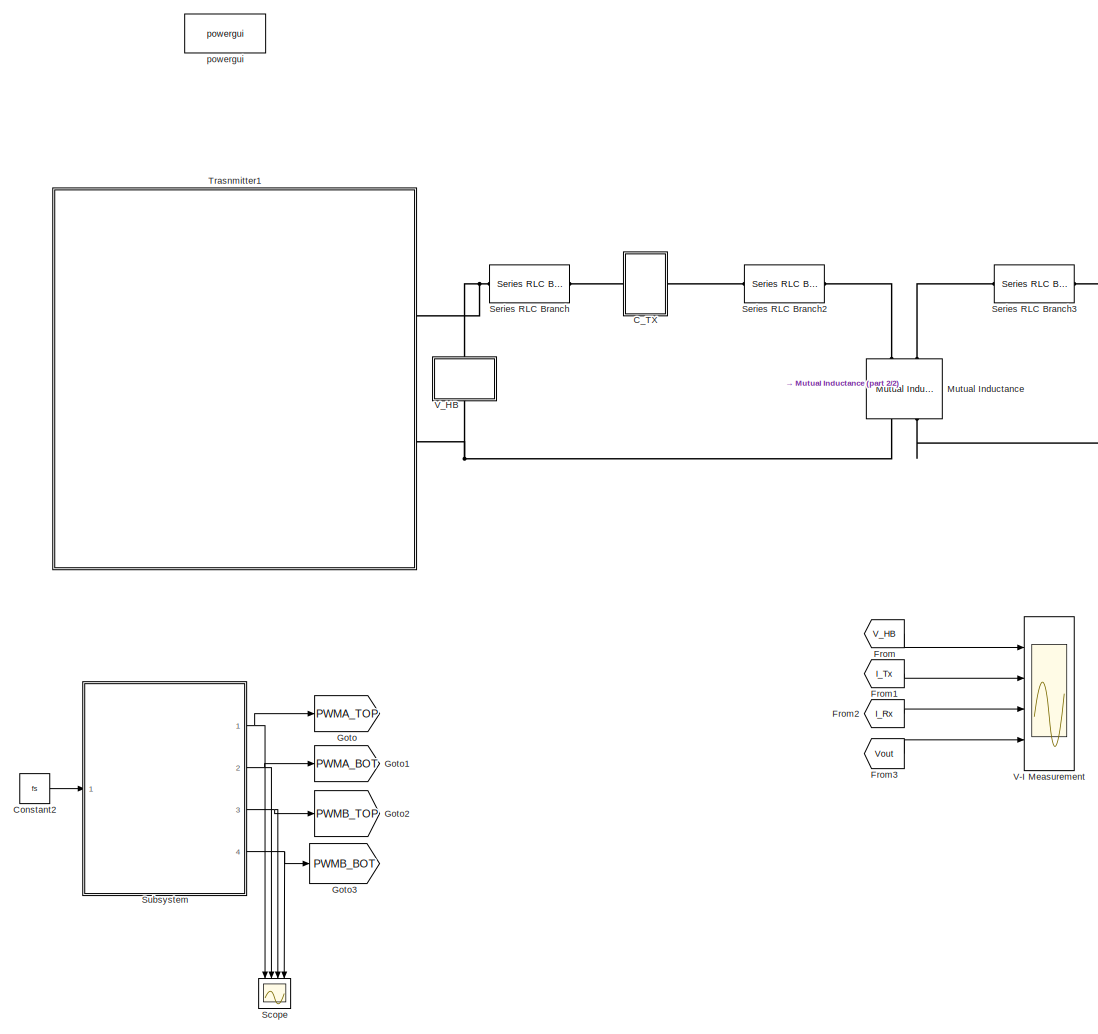
[diagram: root canvas - part 1/2, left side, full height]
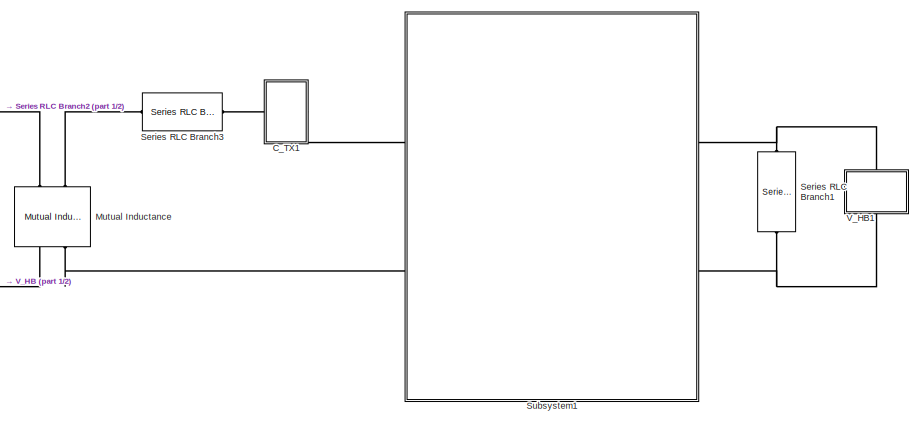
[diagram: root canvas - part 2/2, middle right region]
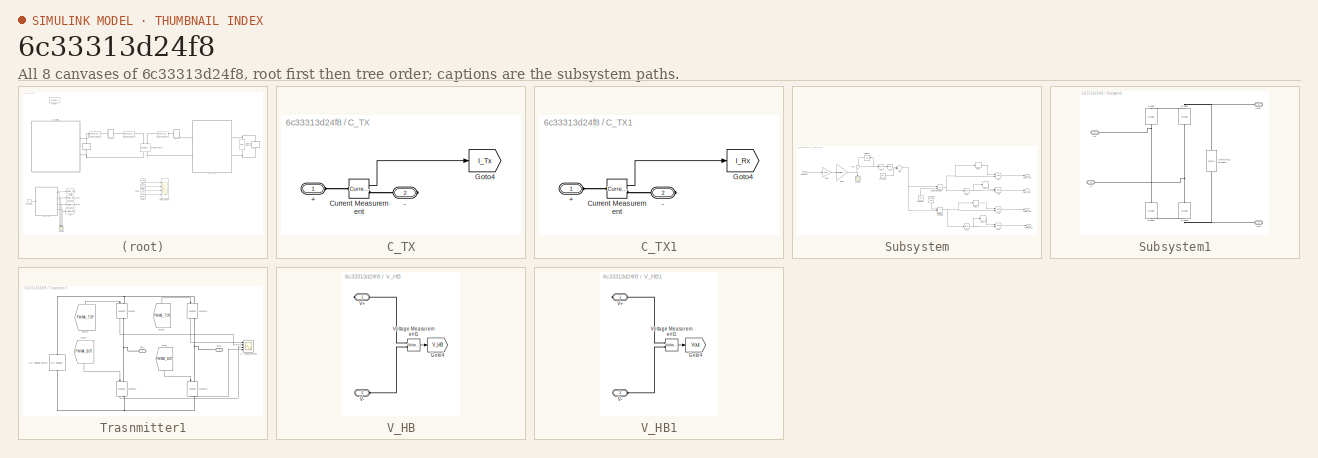
[diagram: thumbnail index - all 8 canvases of the model, root first then tree order]
MODEL slx_6c33313d24f8
KIND model
CONFIG AbsTol = auto
CONFIG EnableMultiTasking = off
CONFIG FixedStep = sampleTime
CONFIG InitFcn = fs=160e3; %Hz\nstopTime=0.01;\nsampleTime=1e-8;\ndeadtime= round(((1/fs)/20)/sampleTime);\nVdc=100;\nLp=82e-6; \nCp=1/ (Lp*4*pi*pi*150e3*150e3);\nLs=66e-6;\nCs=1/ (Ls*4*pi*pi*150e3*150e3);\nRp=0.3;\nRs=0.2;\nRLOAD=20\nk=0.2;\nM=sqrt(Lp*Ls)*k;\nCout=1e-6; %F
CONFIG MaxStep = auto
CONFIG MinStep = auto
CONFIG RelTol = 1e-3
CONFIG SampleTimeConstraint = Unconstrained
CONFIG Solver = FixedStepDiscrete
CONFIG SolverName = FixedStepDiscrete
CONFIG StartTime = 0.0
CONFIG StopTime = stopTime
BLOCK [SubSystem] C_TX
  Ports = [0, 0, 0, 0, 0, 1, 1]
  RequestExecContextInheritance = off
BLOCK [PMIOPort] C_TX/+
  Side = Left
BLOCK [PMIOPort] C_TX/-
  Port = 2
  Side = Right
BLOCK [Reference] C_TX/Current Measurement  REF=powerlib/Measurements/Current Measurement
  Ports = [0, 1, 0, 0, 0, 1, 1]
  SourceBlock = powerlib/Measurements/Current Measurement
  SourceProductBaseCode = PS
  SourceProductName = Simscape Power Systems
  SourceType = Current Measurement
  UserDataPersistent = on
BLOCK [Goto] C_TX/Goto4
  GotoTag = I_Tx
  TagVisibility = global
BLOCK [SubSystem] C_TX1
  Ports = [0, 0, 0, 0, 0, 1, 1]
  RequestExecContextInheritance = off
BLOCK [PMIOPort] C_TX1/+
  Side = Left
BLOCK [PMIOPort] C_TX1/-
  Port = 2
  Side = Right
BLOCK [Reference] C_TX1/Current Measurement  REF=powerlib/Measurements/Current Measurement
  Ports = [0, 1, 0, 0, 0, 1, 1]
  SourceBlock = powerlib/Measurements/Current Measurement
  SourceProductBaseCode = PS
  SourceProductName = Simscape Power Systems
  SourceType = Current Measurement
  UserDataPersistent = on
BLOCK [Goto] C_TX1/Goto4
  GotoTag = I_Rx
  TagVisibility = global
BLOCK [Constant] Constant2
  Value = fs
BLOCK [From] From
  GotoTag = V_HB
  TagVisibility = global
BLOCK [From] From1
  GotoTag = I_Tx
  TagVisibility = global
BLOCK [From] From2
  GotoTag = I_Rx
  TagVisibility = global
BLOCK [From] From3
  GotoTag = Vout
  TagVisibility = global
BLOCK [Goto] Goto
  GotoTag = PWMA_TOP
  TagVisibility = global
BLOCK [Goto] Goto1
  GotoTag = PWMA_BOT
  TagVisibility = global
BLOCK [Goto] Goto2
  GotoTag = PWMB_TOP
  TagVisibility = global
BLOCK [Goto] Goto3
  GotoTag = PWMB_BOT
  TagVisibility = global
BLOCK [Reference] Mutual Inductance  REF=powerlib/Elements/Mutual Inductance
  AttributesFormatString = \n
  Ports = [0, 0, 0, 0, 0, 2, 2]
  SourceBlock = powerlib/Elements/Mutual Inductance
  SourceProductBaseCode = PS
  SourceProductName = Simscape Power Systems
  SourceType = Mutual Inductance
BLOCK [Scope] Scope
  Floating = off
  NumInputPorts = 4
  Ports = [4]
  ScopeSpecificationString = Simulink.scopes.TimeScopeBlockCfg('CurrentConfiguration', extmgr.ConfigurationSet(extmgr.Configuration('Core','General UI',true),extmgr.Configuration('Core','Source UI',true),extmgr.Configuration('Sources','WiredSimulink',true,'DataLoggingVariableName','ScopeData2'),extmgr.Configuration('Visuals','Time Domain',true,'SerializedDisplays',{struct('MinYLimReal','-0.03501','MaxYLimReal','1.05838','YLab...<+1630ch>
BLOCK [Reference] Series RLC Branch  REF=powerlib/Elements/Series RLC Branch
  Ports = [0, 0, 0, 0, 0, 1, 1]
  SourceBlock = powerlib/Elements/Series RLC Branch
  SourceProductBaseCode = PS
  SourceProductName = Simscape Power Systems
  SourceType = Series RLC Branch
BLOCK [Reference] Series RLC Branch1  REF=powerlib/Elements/Series RLC Branch
  Ports = [0, 0, 0, 0, 0, 1, 1]
  SourceBlock = powerlib/Elements/Series RLC Branch
  SourceProductBaseCode = PS
  SourceProductName = Simscape Power Systems
  SourceType = Series RLC Branch
BLOCK [Reference] Series RLC Branch2  REF=powerlib/Elements/Series RLC Branch
  Ports = [0, 0, 0, 0, 0, 1, 1]
  SourceBlock = powerlib/Elements/Series RLC Branch
  SourceProductBaseCode = PS
  SourceProductName = Simscape Power Systems
  SourceType = Series RLC Branch
BLOCK [Reference] Series RLC Branch3  REF=powerlib/Elements/Series RLC Branch
  Ports = [0, 0, 0, 0, 0, 1, 1]
  SourceBlock = powerlib/Elements/Series RLC Branch
  SourceProductBaseCode = PS
  SourceProductName = Simscape Power Systems
  SourceType = Series RLC Branch
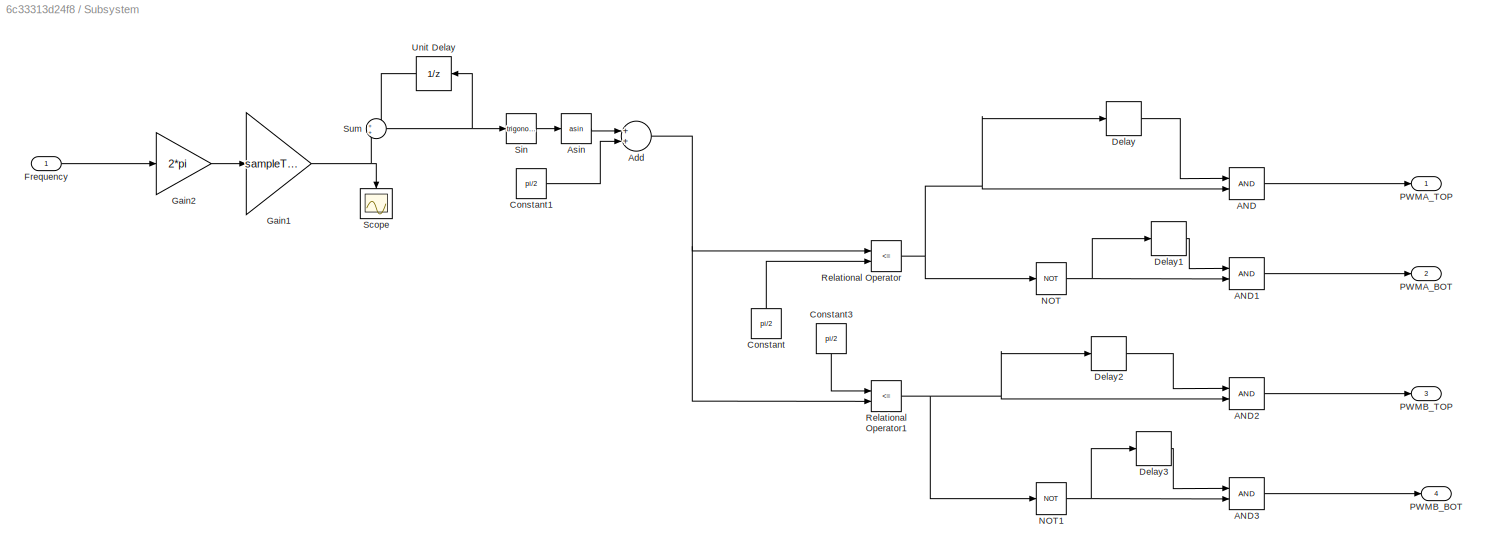
BLOCK [SubSystem] Subsystem
  Ports = [1, 4]
  RequestExecContextInheritance = off
BLOCK [Logic] Subsystem/AND
  AllPortsSameDT = off
  IconShape = distinctive
  OutDataTypeStr = boolean
  Ports = [2, 1]
BLOCK [Logic] Subsystem/AND1
  AllPortsSameDT = off
  IconShape = distinctive
  OutDataTypeStr = boolean
  Ports = [2, 1]
BLOCK [Logic] Subsystem/AND2
  AllPortsSameDT = off
  IconShape = distinctive
  OutDataTypeStr = boolean
  Ports = [2, 1]
BLOCK [Logic] Subsystem/AND3
  AllPortsSameDT = off
  IconShape = distinctive
  OutDataTypeStr = boolean
  Ports = [2, 1]
BLOCK [Sum] Subsystem/Add
  InputSameDT = off
  OutDataTypeStr = Inherit: Inherit via internal rule
  Ports = [2, 1]
  SaturateOnIntegerOverflow = off
BLOCK [Trigonometry] Subsystem/Asin
  Operator = asin
  Ports = [1, 1]
BLOCK [Constant] Subsystem/Constant
  Value = pi/2
BLOCK [Constant] Subsystem/Constant1
  Value = pi/2
BLOCK [Constant] Subsystem/Constant3
  Value = pi/2
BLOCK [Delay] Subsystem/Delay
  DelayLength = deadtime
  InputPortMap = u0
  Ports = [1, 1]
BLOCK [Delay] Subsystem/Delay1
  DelayLength = deadtime
  InputPortMap = u0
  Ports = [1, 1]
BLOCK [Delay] Subsystem/Delay2
  DelayLength = deadtime
  InputPortMap = u0
  Ports = [1, 1]
BLOCK [Delay] Subsystem/Delay3
  DelayLength = deadtime
  InputPortMap = u0
  Ports = [1, 1]
BLOCK [Inport] Subsystem/Frequency
  IconDisplay = Port number
BLOCK [Gain] Subsystem/Gain1
  Gain = sampleTime
  OutDataTypeStr = Inherit: Inherit via internal rule
  ParamDataTypeStr = Inherit: Inherit via internal rule
  SaturateOnIntegerOverflow = off
BLOCK [Gain] Subsystem/Gain2
  Gain = 2*pi
  OutDataTypeStr = Inherit: Inherit via internal rule
  ParamDataTypeStr = Inherit: Inherit via internal rule
  SaturateOnIntegerOverflow = off
BLOCK [Logic] Subsystem/NOT
  AllPortsSameDT = off
  IconShape = distinctive
  Operator = NOT
  OutDataTypeStr = boolean
  Ports = [1, 1]
BLOCK [Logic] Subsystem/NOT1
  AllPortsSameDT = off
  IconShape = distinctive
  Operator = NOT
  OutDataTypeStr = boolean
  Ports = [1, 1]
BLOCK [Outport] Subsystem/PWMA_BOT
  IconDisplay = Port number
  Port = 2
BLOCK [Outport] Subsystem/PWMA_TOP
  IconDisplay = Port number
BLOCK [Outport] Subsystem/PWMB_BOT
  IconDisplay = Port number
  Port = 4
BLOCK [Outport] Subsystem/PWMB_TOP
  IconDisplay = Port number
  Port = 3
BLOCK [RelationalOperator] Subsystem/Relational Operator
  InputSameDT = off
  Operator = <=
  OutDataTypeStr = boolean
  Ports = [2, 1]
  RndMeth = Simplest
BLOCK [RelationalOperator] Subsystem/Relational Operator1
  InputSameDT = off
  Operator = <=
  OutDataTypeStr = boolean
  Ports = [2, 1]
  RndMeth = Simplest
BLOCK [Scope] Subsystem/Scope
  Floating = off
  NumInputPorts = 1
  Ports = [1]
  ScopeSpecificationString = Simulink.scopes.TimeScopeBlockCfg('CurrentConfiguration', extmgr.ConfigurationSet(extmgr.Configuration('Core','General UI',true),extmgr.Configuration('Core','Source UI',true),extmgr.Configuration('Sources','WiredSimulink',true),extmgr.Configuration('Visuals','Time Domain',true),extmgr.Configuration('Tools','Plot Navigation',true),extmgr.Configuration('Tools','Measurements',true)),'Version','2018a'...<+1ch>
BLOCK [Trigonometry] Subsystem/Sin
  Ports = [1, 1]
BLOCK [Sum] Subsystem/Sum
  IconShape = round
  InputSameDT = off
  OutDataTypeStr = Inherit: Inherit via internal rule
  Ports = [2, 1]
  SaturateOnIntegerOverflow = off
BLOCK [UnitDelay] Subsystem/Unit Delay
  InputProcessing = Elements as channels (sample based)
  SampleTime = -1
BLOCK [SubSystem] Subsystem1
  Ports = [0, 0, 0, 0, 0, 2, 2]
  RequestExecContextInheritance = off
BLOCK [PMIOPort] Subsystem1/+In
  Port = 2
  Side = Left
BLOCK [PMIOPort] Subsystem1/-In
  Port = 3
  Side = Left
BLOCK [Reference] Subsystem1/Diode  REF=powerlib/Power
Electronics/Diode
  Ports = [0, 0, 0, 0, 0, 1, 1]
  SourceBlock = powerlib/Power\nElectronics/Diode
  SourceProductBaseCode = PS
  SourceProductName = Simscape Power Systems
  SourceType = Diode
BLOCK [Reference] Subsystem1/Diode1  REF=powerlib/Power
Electronics/Diode
  Ports = [0, 0, 0, 0, 0, 1, 1]
  SourceBlock = powerlib/Power\nElectronics/Diode
  SourceProductBaseCode = PS
  SourceProductName = Simscape Power Systems
  SourceType = Diode
BLOCK [Reference] Subsystem1/Diode2  REF=powerlib/Power
Electronics/Diode
  Ports = [0, 0, 0, 0, 0, 1, 1]
  SourceBlock = powerlib/Power\nElectronics/Diode
  SourceProductBaseCode = PS
  SourceProductName = Simscape Power Systems
  SourceType = Diode
BLOCK [Reference] Subsystem1/Diode3  REF=powerlib/Power
Electronics/Diode
  Ports = [0, 0, 0, 0, 0, 1, 1]
  SourceBlock = powerlib/Power\nElectronics/Diode
  SourceProductBaseCode = PS
  SourceProductName = Simscape Power Systems
  SourceType = Diode
BLOCK [Reference] Subsystem1/Series RLC Branch4  REF=powerlib/Elements/Series RLC Branch
  Ports = [0, 0, 0, 0, 0, 1, 1]
  SourceBlock = powerlib/Elements/Series RLC Branch
  SourceProductBaseCode = PS
  SourceProductName = Simscape Power Systems
  SourceType = Series RLC Branch
BLOCK [PMIOPort] Subsystem1/Vout+
  Side = Right
BLOCK [PMIOPort] Subsystem1/Vout-
  Port = 4
  Side = Right
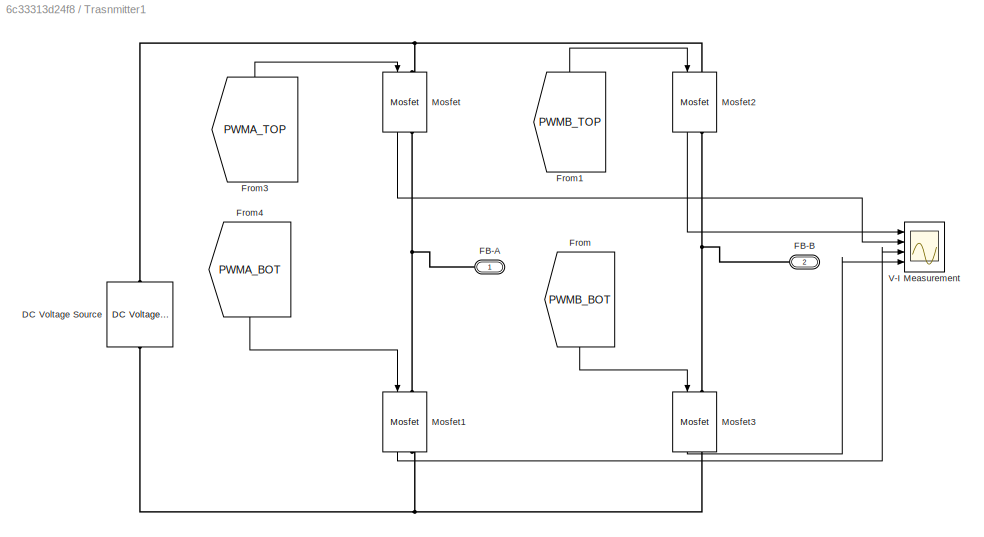
BLOCK [SubSystem] Trasnmitter1
  Ports = [0, 0, 0, 0, 0, 2]
  RequestExecContextInheritance = off
BLOCK [Reference] Trasnmitter1/DC Voltage Source  REF=powerlib/Electrical
Sources/DC Voltage Source
  Ports = [0, 0, 0, 0, 0, 1, 1]
  SourceBlock = powerlib/Electrical\nSources/DC Voltage Source
  SourceProductBaseCode = PS
  SourceProductName = Simscape Power Systems
  SourceType = DC Voltage Source
BLOCK [PMIOPort] Trasnmitter1/FB-A
  Side = Left
BLOCK [PMIOPort] Trasnmitter1/FB-B
  Port = 2
  Side = Left
BLOCK [From] Trasnmitter1/From
  GotoTag = PWMB_BOT
  TagVisibility = global
BLOCK [From] Trasnmitter1/From1
  GotoTag = PWMB_TOP
  TagVisibility = global
BLOCK [From] Trasnmitter1/From3
  GotoTag = PWMA_TOP
  TagVisibility = global
BLOCK [From] Trasnmitter1/From4
  GotoTag = PWMA_BOT
  TagVisibility = global
BLOCK [Reference] Trasnmitter1/Mosfet  REF=powerlib/Power
Electronics/Mosfet
  Ports = [1, 1, 0, 0, 0, 1, 1]
  SourceBlock = powerlib/Power\nElectronics/Mosfet
  SourceProductBaseCode = PS
  SourceProductName = Simscape Power Systems
  SourceType = Mosfet
BLOCK [Reference] Trasnmitter1/Mosfet1  REF=powerlib/Power
Electronics/Mosfet
  Ports = [1, 1, 0, 0, 0, 1, 1]
  SourceBlock = powerlib/Power\nElectronics/Mosfet
  SourceProductBaseCode = PS
  SourceProductName = Simscape Power Systems
  SourceType = Mosfet
BLOCK [Reference] Trasnmitter1/Mosfet2  REF=powerlib/Power
Electronics/Mosfet
  Ports = [1, 1, 0, 0, 0, 1, 1]
  SourceBlock = powerlib/Power\nElectronics/Mosfet
  SourceProductBaseCode = PS
  SourceProductName = Simscape Power Systems
  SourceType = Mosfet
BLOCK [Reference] Trasnmitter1/Mosfet3  REF=powerlib/Power
Electronics/Mosfet
  Ports = [1, 1, 0, 0, 0, 1, 1]
  SourceBlock = powerlib/Power\nElectronics/Mosfet
  SourceProductBaseCode = PS
  SourceProductName = Simscape Power Systems
  SourceType = Mosfet
BLOCK [Scope] Trasnmitter1/V-I Measurement
  Floating = off
  NumInputPorts = 4
  Ports = [4]
  ScopeSpecificationString = Simulink.scopes.TimeScopeBlockCfg('CurrentConfiguration', extmgr.ConfigurationSet(extmgr.Configuration('Core','General UI',true,'FigureColor',[0.831372549019608 0.815686274509804 0.784313725490196]),extmgr.Configuration('Core','Source UI',true),extmgr.Configuration('Sources','WiredSimulink',true,'DataLoggingVariableName','ScopeData2'),extmgr.Configuration('Visuals','Time Domain',true,'SerializedDi...<+4712ch>
BLOCK [Scope] V-I Measurement
  Floating = off
  NumInputPorts = 4
  Ports = [4]
  ScopeSpecificationString = Simulink.scopes.TimeScopeBlockCfg('CurrentConfiguration', extmgr.ConfigurationSet(extmgr.Configuration('Core','General UI',true,'FigureColor',[0.831372549019608 0.815686274509804 0.784313725490196]),extmgr.Configuration('Core','Source UI',true),extmgr.Configuration('Sources','WiredSimulink',true,'DataLoggingVariableName','ScopeData1'),extmgr.Configuration('Visuals','Time Domain',true,'SerializedDi...<+4202ch>
BLOCK [SubSystem] V_HB
  Ports = [0, 0, 0, 0, 0, 1, 1]
  RequestExecContextInheritance = off
BLOCK [Goto] V_HB/Goto4
  GotoTag = V_HB
  TagVisibility = global
BLOCK [PMIOPort] V_HB/V+
  Side = Right
BLOCK [PMIOPort] V_HB/V-
  Port = 2
  Side = Left
BLOCK [Reference] V_HB/Voltage Measurement1  REF=powerlib/Measurements/Voltage Measurement
  Ports = [0, 1, 0, 0, 0, 2]
  SourceBlock = powerlib/Measurements/Voltage Measurement
  SourceProductBaseCode = PS
  SourceProductName = Simscape Power Systems
  SourceType = Voltage Measurement
  UserDataPersistent = on
BLOCK [SubSystem] V_HB1
  Ports = [0, 0, 0, 0, 0, 1, 1]
  RequestExecContextInheritance = off
BLOCK [Goto] V_HB1/Goto4
  GotoTag = Vout
  TagVisibility = global
BLOCK [PMIOPort] V_HB1/V+
  Side = Right
BLOCK [PMIOPort] V_HB1/V-
  Port = 2
  Side = Left
BLOCK [Reference] V_HB1/Voltage Measurement1  REF=powerlib/Measurements/Voltage Measurement
  Ports = [0, 1, 0, 0, 0, 2]
  SourceBlock = powerlib/Measurements/Voltage Measurement
  SourceProductBaseCode = PS
  SourceProductName = Simscape Power Systems
  SourceType = Voltage Measurement
  UserDataPersistent = on
BLOCK [Reference] powergui  REF=powerlib/powergui
  Ports = []
  Priority = 1
  SourceBlock = powerlib/powergui
  SourceProductBaseCode = PS
  SourceProductName = Simscape Power Systems
  SourceType = PSB option menu block
LINE C_TX/Current Measurement:1 -> C_TX/Goto4:1
LINE C_TX1/Current Measurement:1 -> C_TX1/Goto4:1
LINE Constant2:1 -> Subsystem:1
LINE From1:1 -> V-I Measurement:2
LINE From2:1 -> V-I Measurement:3
LINE From3:1 -> V-I Measurement:4
LINE From:1 -> V-I Measurement:1
LINE Subsystem/AND1:1 -> Subsystem/PWMA_BOT:1
LINE Subsystem/AND2:1 -> Subsystem/PWMB_TOP:1
LINE Subsystem/AND3:1 -> Subsystem/PWMB_BOT:1
LINE Subsystem/AND:1 -> Subsystem/PWMA_TOP:1
NET Subsystem/Add:1 -> Subsystem/Relational Operator1:2, Subsystem/Relational Operator:1
LINE Subsystem/Asin:1 -> Subsystem/Add:1
LINE Subsystem/Constant1:1 -> Subsystem/Add:2
LINE Subsystem/Constant3:1 -> Subsystem/Relational Operator1:1
LINE Subsystem/Constant:1 -> Subsystem/Relational Operator:2
LINE Subsystem/Delay1:1 -> Subsystem/AND1:1
LINE Subsystem/Delay2:1 -> Subsystem/AND2:1
LINE Subsystem/Delay3:1 -> Subsystem/AND3:1
LINE Subsystem/Delay:1 -> Subsystem/AND:1
LINE Subsystem/Frequency:1 -> Subsystem/Gain2:1
NET Subsystem/Gain1:1 -> Subsystem/Scope:1, Subsystem/Sum:2
LINE Subsystem/Gain2:1 -> Subsystem/Gain1:1
NET Subsystem/NOT1:1 -> Subsystem/AND3:2, Subsystem/Delay3:1
NET Subsystem/NOT:1 -> Subsystem/AND1:2, Subsystem/Delay1:1
NET Subsystem/Relational Operator1:1 -> Subsystem/AND2:2, Subsystem/Delay2:1, Subsystem/NOT1:1
NET Subsystem/Relational Operator:1 -> Subsystem/AND:2, Subsystem/Delay:1, Subsystem/NOT:1
LINE Subsystem/Sin:1 -> Subsystem/Asin:1
NET Subsystem/Sum:1 -> Subsystem/Sin:1, Subsystem/Unit Delay:1
LINE Subsystem/Unit Delay:1 -> Subsystem/Sum:1
NET Subsystem:1 -> Goto:1, Scope:1
NET Subsystem:2 -> Goto1:1, Scope:2
NET Subsystem:3 -> Goto2:1, Scope:3
NET Subsystem:4 -> Goto3:1, Scope:4
LINE Trasnmitter1/From1:1 -> Trasnmitter1/Mosfet2:1
LINE Trasnmitter1/From3:1 -> Trasnmitter1/Mosfet:1
LINE Trasnmitter1/From4:1 -> Trasnmitter1/Mosfet1:1
LINE Trasnmitter1/From:1 -> Trasnmitter1/Mosfet3:1
LINE Trasnmitter1/Mosfet1:1 -> Trasnmitter1/V-I Measurement:3
LINE Trasnmitter1/Mosfet2:1 -> Trasnmitter1/V-I Measurement:1
LINE Trasnmitter1/Mosfet3:1 -> Trasnmitter1/V-I Measurement:4
LINE Trasnmitter1/Mosfet:1 -> Trasnmitter1/V-I Measurement:2
LINE V_HB/Voltage Measurement1:1 -> V_HB/Goto4:1
LINE V_HB1/Voltage Measurement1:1 -> V_HB1/Goto4:1
PLINE C_TX/+:RConn1 -- C_TX/Current Measurement:LConn1
PLINE C_TX/-:RConn1 -- C_TX/Current Measurement:RConn1
PLINE C_TX1/+:RConn1 -- C_TX1/Current Measurement:LConn1
PLINE C_TX1/-:RConn1 -- C_TX1/Current Measurement:RConn1
PLINE C_TX1:LConn1 -- Series RLC Branch3:RConn1
PLINE C_TX1:RConn1 -- Subsystem1:LConn1
PLINE C_TX:LConn1 -- Series RLC Branch:RConn1
PLINE C_TX:RConn1 -- Series RLC Branch2:LConn1
PLINE Mutual Inductance:LConn1 -- Series RLC Branch2:RConn1
PLINE Mutual Inductance:LConn2 -- Series RLC Branch3:LConn1
PNET net1: Mutual Inductance:RConn1 -- Trasnmitter1:LConn2 -- V_HB:LConn1
PLINE Mutual Inductance:RConn2 -- Subsystem1:LConn2
PNET net2: Series RLC Branch1:LConn1 -- Subsystem1:RConn1 -- V_HB1:RConn1
PNET net3: Series RLC Branch1:RConn1 -- Subsystem1:RConn2 -- V_HB1:LConn1
PNET net4: Series RLC Branch:LConn1 -- Trasnmitter1:LConn1 -- V_HB:RConn1
PNET net5: Subsystem1/+In:RConn1 -- Subsystem1/Diode1:RConn1 -- Subsystem1/Diode:LConn1
PNET net6: Subsystem1/-In:RConn1 -- Subsystem1/Diode2:LConn1 -- Subsystem1/Diode3:RConn1
PNET net7: Subsystem1/Diode1:LConn1 -- Subsystem1/Diode3:LConn1 -- Subsystem1/Series RLC Branch4:RConn1 -- Subsystem1/Vout-:RConn1
PNET net8: Subsystem1/Diode2:RConn1 -- Subsystem1/Diode:RConn1 -- Subsystem1/Series RLC Branch4:LConn1 -- Subsystem1/Vout+:RConn1
PNET net9: Trasnmitter1/DC Voltage Source:LConn1 -- Trasnmitter1/Mosfet1:RConn1 -- Trasnmitter1/Mosfet3:RConn1
PNET net10: Trasnmitter1/DC Voltage Source:RConn1 -- Trasnmitter1/Mosfet2:LConn1 -- Trasnmitter1/Mosfet:LConn1
PNET net11: Trasnmitter1/FB-A:RConn1 -- Trasnmitter1/Mosfet1:LConn1 -- Trasnmitter1/Mosfet:RConn1
PNET net12: Trasnmitter1/FB-B:RConn1 -- Trasnmitter1/Mosfet2:RConn1 -- Trasnmitter1/Mosfet3:LConn1
PLINE V_HB/V+:RConn1 -- V_HB/Voltage Measurement1:LConn1
PLINE V_HB/V-:RConn1 -- V_HB/Voltage Measurement1:LConn2
PLINE V_HB1/V+:RConn1 -- V_HB1/Voltage Measurement1:LConn1
PLINE V_HB1/V-:RConn1 -- V_HB1/Voltage Measurement1:LConn2
note: NET lines group one-source signal fan-out (src -> all destinations, sorted); 1:1 wires keep LINE; PNET lines group multi-terminal physical nets as a canonical sorted terminal list (undirected conserving connections); 2-terminal nets keep the pairwise PLINE form
